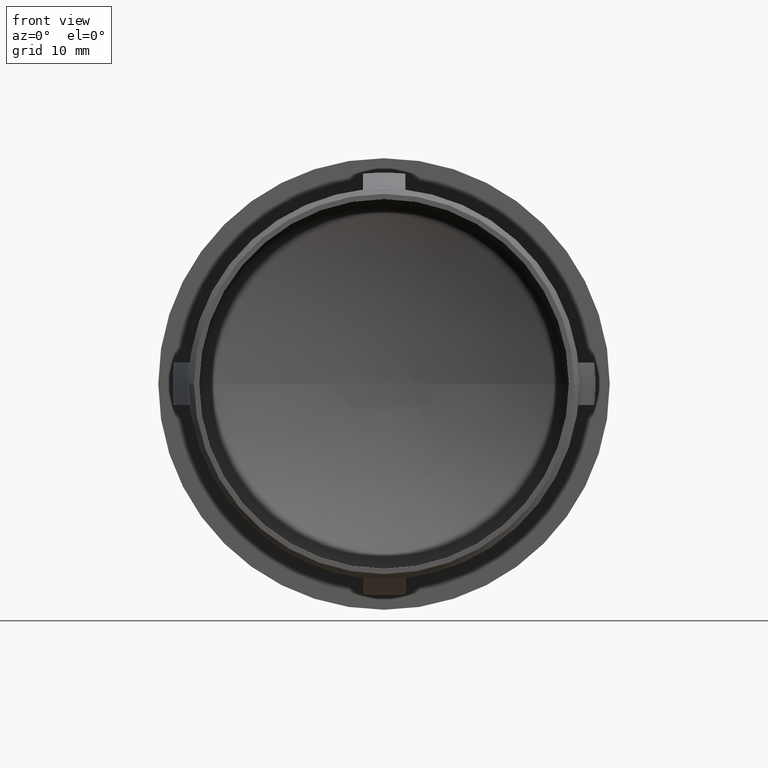
[diagram: clean part render]
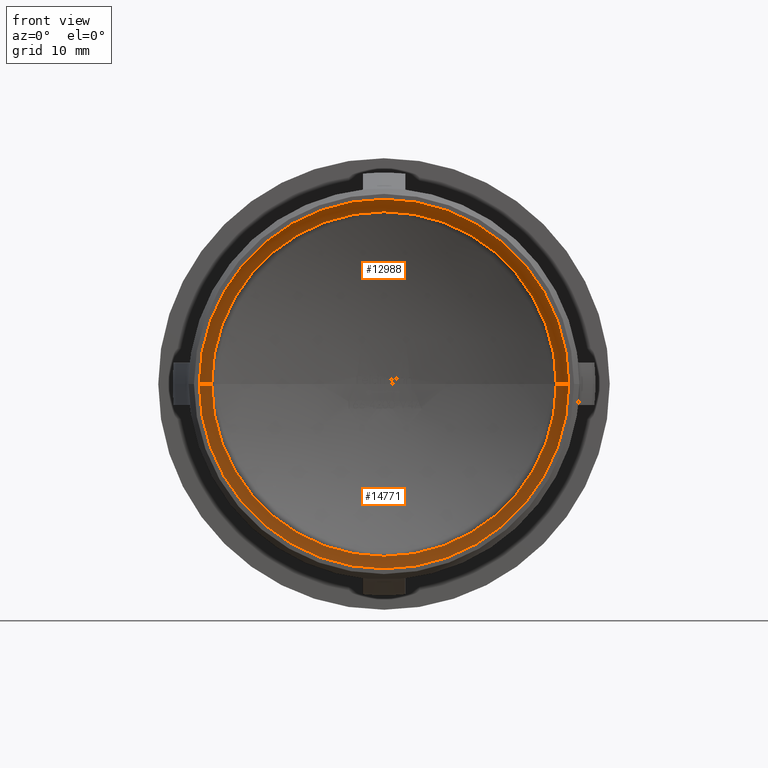
[diagram: same view with one multi-face feature highlighted, each face labeled with its STEP entity id]
A machine part, front view. The highlighted faces form ONE feature: a constant-radius fillet chain: 2 tangent blend faces with common blend radius 2 mm. The faces share edges in the B-rep.
Their STEP definitions:
[1] entity #12988 (Torus):
#309 = EDGE_CURVE ( 'NONE', #7500, #5555, #5041, .T. ) ;
#345 = DIRECTION ( 'NONE',  ( -1.000000000000000000, 0.000000000000000000, 0.000000000000000000 ) ) ;
#734 = DIRECTION ( 'NONE',  ( 1.000000000000000000, 0.000000000000000000, -1.224646799147353454E-16 ) ) ;
#964 = ORIENTED_EDGE ( 'NONE', *, *, #5711, .F. ) ;
#1360 = CARTESIAN_POINT ( 'NONE',  ( 17.35000000000000497, 26.66104371644172488, 0.000000000000000000 ) ) ;
#1407 = AXIS2_PLACEMENT_3D ( 'NONE', #14942, #3009, #6653 ) ;
#1909 = DIRECTION ( 'NONE',  ( 1.224646799147353207E-16, 1.741387747646275919E-31, 1.000000000000000000 ) ) ;
#2434 = EDGE_CURVE ( 'NONE', #5555, #11731, #10088, .T. ) ;
#2561 = AXIS2_PLACEMENT_3D ( 'NONE', #8558, #6275, #345 ) ;
#2749 = CARTESIAN_POINT ( 'NONE',  ( 9.724660765184391104E-15, 26.66104371644170001, 0.000000000000000000 ) ) ;
#2832 = CARTESIAN_POINT ( 'NONE',  ( 8.673617379884035472E-15, 26.66104371644170357, 0.000000000000000000 ) ) ;
#2883 = DIRECTION ( 'NONE',  ( 1.000000000000000000, 1.421951005676655478E-15, 0.000000000000000000 ) ) ;
#3009 = DIRECTION ( 'NONE',  ( 1.421951005676655478E-15, -1.000000000000000000, -0.000000000000000000 ) ) ;
#3541 = VERTEX_POINT ( 'NONE', #10694 ) ;
#4298 = FACE_OUTER_BOUND ( 'NONE', #11827, .T. ) ;
#4597 = AXIS2_PLACEMENT_3D ( 'NONE', #2832, #13572, #2883 ) ;
#5041 = CIRCLE ( 'NONE', #2561, 1.999999999999998224 ) ;
#5520 = AXIS2_PLACEMENT_3D ( 'NONE', #9031, #1909, #734 ) ;
#5555 = VERTEX_POINT ( 'NONE', #1360 ) ;
#5711 = EDGE_CURVE ( 'NONE', #3541, #11731, #7779, .T. ) ;
#6275 = DIRECTION ( 'NONE',  ( 0.000000000000000000, 0.000000000000000000, -1.000000000000000000 ) ) ;
#6653 = DIRECTION ( 'NONE',  ( 1.000000000000000000, 1.500924697697817999E-15, 0.000000000000000000 ) ) ;
#7500 = VERTEX_POINT ( 'NONE', #9875 ) ;
#7779 = CIRCLE ( 'NONE', #5520, 1.999999999999998224 ) ;
#8558 = CARTESIAN_POINT ( 'NONE',  ( 15.35000000000000497, 26.66104371644172488, 0.000000000000000000 ) ) ;
#9031 = CARTESIAN_POINT ( 'NONE',  ( -15.34999999999998721, 26.66104371644168225, 1.879832836691186733E-15 ) ) ;
#9404 = CIRCLE ( 'NONE', #1407, 16.18077755727945188 ) ;
#9779 = CARTESIAN_POINT ( 'NONE',  ( -17.34999999999998366, 26.66104371644167514, 2.124762196520659001E-15 ) ) ;
#9875 = CARTESIAN_POINT ( 'NONE',  ( 16.18077755727945899, 28.48033166789987902, 0.000000000000000000 ) ) ;
#10009 = DIRECTION ( 'NONE',  ( 1.000000000000000000, 1.399776868223360611E-15, 0.000000000000000000 ) ) ;
#10088 = CIRCLE ( 'NONE', #10334, 17.34999999999999432 ) ;
#10334 = AXIS2_PLACEMENT_3D ( 'NONE', #2749, #13475, #10009 ) ;
#10694 = CARTESIAN_POINT ( 'NONE',  ( -16.18077755727950162, 28.48033166789982928, 1.981573744323760514E-15 ) ) ;
#10903 = TOROIDAL_SURFACE ( 'NONE', #4597, 15.34999999999999609, 1.999999999999998224 ) ;
#11731 = VERTEX_POINT ( 'NONE', #9779 ) ;
#11827 = EDGE_LOOP ( 'NONE', ( #964, #14964, #14379, #14128 ) ) ;
#12636 = EDGE_CURVE ( 'NONE', #7500, #3541, #9404, .T. ) ;
#12988 = ADVANCED_FACE ( 'NONE', ( #4298 ), #10903, .F. ) ;
#13475 = DIRECTION ( 'NONE',  ( 1.421951005676655478E-15, -1.000000000000000000, -0.000000000000000000 ) ) ;
#13572 = DIRECTION ( 'NONE',  ( 1.421951005676655478E-15, -1.000000000000000000, -0.000000000000000000 ) ) ;
#14128 = ORIENTED_EDGE ( 'NONE', *, *, #2434, .T. ) ;
#14379 = ORIENTED_EDGE ( 'NONE', *, *, #309, .T. ) ;
#14942 = CARTESIAN_POINT ( 'NONE',  ( 7.137722432993047044E-15, 28.48033166789985060, 0.000000000000000000 ) ) ;
#14964 = ORIENTED_EDGE ( 'NONE', *, *, #12636, .F. ) ;
[2] entity #14771 (Torus):
#275 = AXIS2_PLACEMENT_3D ( 'NONE', #7498, #8567, #9763 ) ;
#289 = CIRCLE ( 'NONE', #2963, 17.34999999999999432 ) ;
#309 = EDGE_CURVE ( 'NONE', #7500, #5555, #5041, .T. ) ;
#322 = AXIS2_PLACEMENT_3D ( 'NONE', #3733, #12295, #8967 ) ;
#345 = DIRECTION ( 'NONE',  ( -1.000000000000000000, 0.000000000000000000, 0.000000000000000000 ) ) ;
#734 = DIRECTION ( 'NONE',  ( 1.000000000000000000, 0.000000000000000000, -1.224646799147353454E-16 ) ) ;
#1360 = CARTESIAN_POINT ( 'NONE',  ( 17.35000000000000497, 26.66104371644172488, 0.000000000000000000 ) ) ;
#1681 = TOROIDAL_SURFACE ( 'NONE', #322, 15.34999999999999609, 1.999999999999998224 ) ;
#1909 = DIRECTION ( 'NONE',  ( 1.224646799147353207E-16, 1.741387747646275919E-31, 1.000000000000000000 ) ) ;
#2561 = AXIS2_PLACEMENT_3D ( 'NONE', #8558, #6275, #345 ) ;
#2963 = AXIS2_PLACEMENT_3D ( 'NONE', #5805, #4666, #13112 ) ;
#3541 = VERTEX_POINT ( 'NONE', #10694 ) ;
#3733 = CARTESIAN_POINT ( 'NONE',  ( 8.673617379884035472E-15, 26.66104371644170357, 0.000000000000000000 ) ) ;
#4666 = DIRECTION ( 'NONE',  ( 1.421951005676655478E-15, -1.000000000000000000, -0.000000000000000000 ) ) ;
#5041 = CIRCLE ( 'NONE', #2561, 1.999999999999998224 ) ;
#5520 = AXIS2_PLACEMENT_3D ( 'NONE', #9031, #1909, #734 ) ;
#5555 = VERTEX_POINT ( 'NONE', #1360 ) ;
#5711 = EDGE_CURVE ( 'NONE', #3541, #11731, #7779, .T. ) ;
#5805 = CARTESIAN_POINT ( 'NONE',  ( 9.724660765184391104E-15, 26.66104371644170001, 0.000000000000000000 ) ) ;
#5991 = ORIENTED_EDGE ( 'NONE', *, *, #8242, .T. ) ;
#6275 = DIRECTION ( 'NONE',  ( 0.000000000000000000, 0.000000000000000000, -1.000000000000000000 ) ) ;
#7498 = CARTESIAN_POINT ( 'NONE',  ( 7.137722432993047044E-15, 28.48033166789985060, 0.000000000000000000 ) ) ;
#7500 = VERTEX_POINT ( 'NONE', #9875 ) ;
#7745 = EDGE_LOOP ( 'NONE', ( #12720, #13234, #5991, #7994 ) ) ;
#7779 = CIRCLE ( 'NONE', #5520, 1.999999999999998224 ) ;
#7994 = ORIENTED_EDGE ( 'NONE', *, *, #309, .F. ) ;
#8242 = EDGE_CURVE ( 'NONE', #11731, #5555, #289, .T. ) ;
#8495 = CIRCLE ( 'NONE', #275, 16.18077755727945188 ) ;
#8558 = CARTESIAN_POINT ( 'NONE',  ( 15.35000000000000497, 26.66104371644172488, 0.000000000000000000 ) ) ;
#8567 = DIRECTION ( 'NONE',  ( 1.421951005676655478E-15, -1.000000000000000000, -0.000000000000000000 ) ) ;
#8967 = DIRECTION ( 'NONE',  ( 1.000000000000000000, 1.421951005676655478E-15, 0.000000000000000000 ) ) ;
#9031 = CARTESIAN_POINT ( 'NONE',  ( -15.34999999999998721, 26.66104371644168225, 1.879832836691186733E-15 ) ) ;
#9763 = DIRECTION ( 'NONE',  ( 1.000000000000000000, 1.500924697697817999E-15, 0.000000000000000000 ) ) ;
#9779 = CARTESIAN_POINT ( 'NONE',  ( -17.34999999999998366, 26.66104371644167514, 2.124762196520659001E-15 ) ) ;
#9875 = CARTESIAN_POINT ( 'NONE',  ( 16.18077755727945899, 28.48033166789987902, 0.000000000000000000 ) ) ;
#9900 = EDGE_CURVE ( 'NONE', #3541, #7500, #8495, .T. ) ;
#10488 = FACE_OUTER_BOUND ( 'NONE', #7745, .T. ) ;
#10694 = CARTESIAN_POINT ( 'NONE',  ( -16.18077755727950162, 28.48033166789982928, 1.981573744323760514E-15 ) ) ;
#11731 = VERTEX_POINT ( 'NONE', #9779 ) ;
#12295 = DIRECTION ( 'NONE',  ( 1.421951005676655478E-15, -1.000000000000000000, -0.000000000000000000 ) ) ;
#12720 = ORIENTED_EDGE ( 'NONE', *, *, #9900, .F. ) ;
#13112 = DIRECTION ( 'NONE',  ( 1.000000000000000000, 1.399776868223360611E-15, 0.000000000000000000 ) ) ;
#13234 = ORIENTED_EDGE ( 'NONE', *, *, #5711, .T. ) ;
#14771 = ADVANCED_FACE ( 'NONE', ( #10488 ), #1681, .F. ) ;